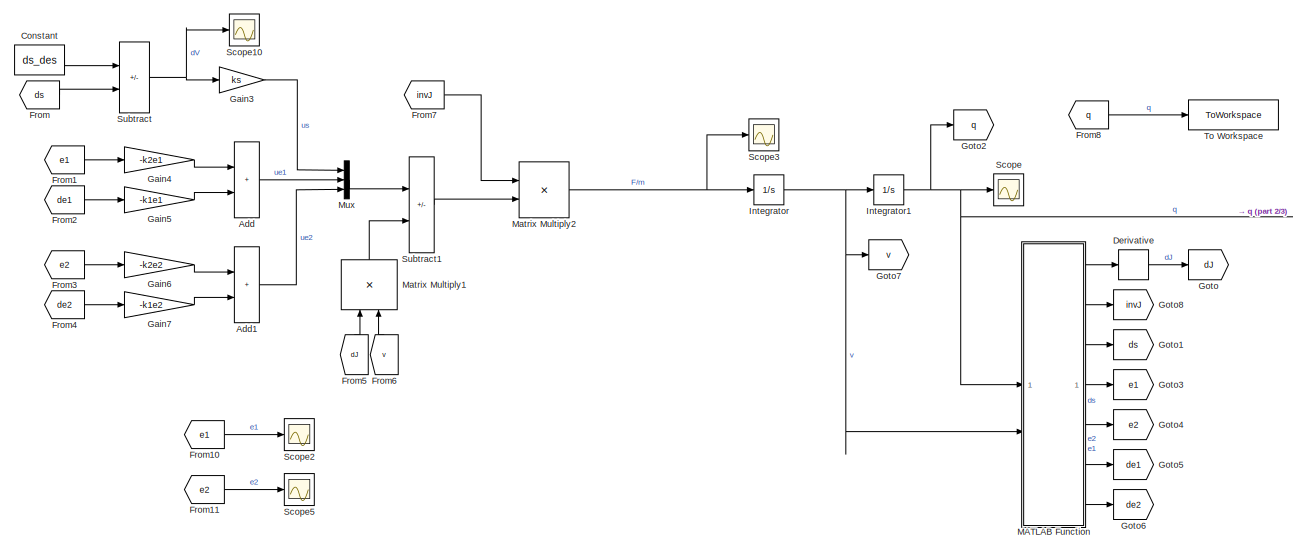
[diagram: root canvas - part 1/3, full width, top band]
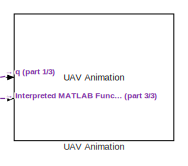
[diagram: root canvas - part 2/3, middle right region]
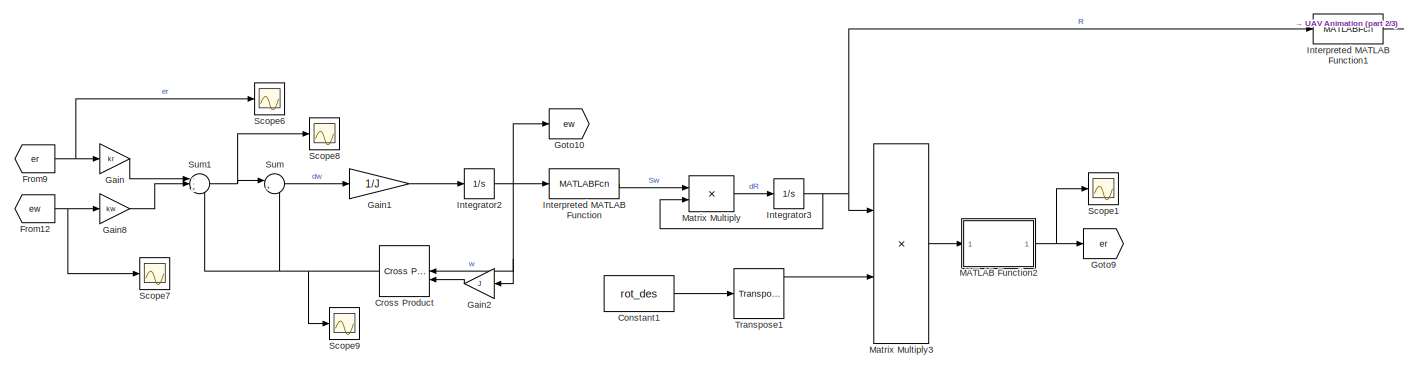
[diagram: root canvas - part 3/3, full width, bottom band]
MODEL slx_d475de944441
KIND model
CONFIG AbsTol = auto
CONFIG EnableMultiTasking = off
CONFIG FixedStep = auto
CONFIG MaxStep = auto
CONFIG MinStep = auto
CONFIG RelTol = 1e-3
CONFIG SampleTimeConstraint = Unconstrained
CONFIG SolverName = VariableStepAuto
CONFIG StartTime = 0.0
CONFIG StopTime = 50
BLOCK [Sum] Add
  IconShape = rectangular
BLOCK [Sum] Add1
  IconShape = rectangular
BLOCK [Constant] Constant
  Value = ds_des
BLOCK [Constant] Constant1
  Value = rot_des
  VectorParams1D = off
BLOCK [Reference] Cross Product  REF=matrix_library/Cross Product
  LibrarySourceBlock = simulink/Matrix\nOperations/Cross Product
  SourceBlock = matrix_library/Cross Product
  SourceType = CrossProduct
BLOCK [Derivative] Derivative
BLOCK [From] From
  GotoTag = ds
BLOCK [From] From1
  GotoTag = e1
BLOCK [From] From10
  GotoTag = e1
BLOCK [From] From11
  GotoTag = e2
BLOCK [From] From12
  GotoTag = ew
BLOCK [From] From2
  GotoTag = de1
BLOCK [From] From3
  GotoTag = e2
BLOCK [From] From4
  GotoTag = de2
BLOCK [From] From5
  GotoTag = dJ
  NameLocation = right
BLOCK [From] From6
  GotoTag = v
  NameLocation = right
BLOCK [From] From7
  GotoTag = invJ
BLOCK [From] From8
  GotoTag = q
BLOCK [From] From9
  GotoTag = er
BLOCK [Gain] Gain
  Gain = kr
BLOCK [Gain] Gain1
  Gain = 1/J
BLOCK [Gain] Gain2
  Gain = J
BLOCK [Gain] Gain3
  Gain = ks
BLOCK [Gain] Gain4
  Gain = -k2e1
BLOCK [Gain] Gain5
  Gain = -k1e1
BLOCK [Gain] Gain6
  Gain = -k2e2
BLOCK [Gain] Gain7
  Gain = -k1e2
BLOCK [Gain] Gain8
  Gain = kw
BLOCK [Goto] Goto
  GotoTag = dJ
BLOCK [Goto] Goto1
  GotoTag = ds
BLOCK [Goto] Goto10
  GotoTag = ew
BLOCK [Goto] Goto2
  GotoTag = q
BLOCK [Goto] Goto3
  GotoTag = e1
BLOCK [Goto] Goto4
  GotoTag = e2
BLOCK [Goto] Goto5
  GotoTag = de1
BLOCK [Goto] Goto6
  GotoTag = de2
BLOCK [Goto] Goto7
  GotoTag = v
BLOCK [Goto] Goto8
  GotoTag = invJ
BLOCK [Goto] Goto9
  GotoTag = er
BLOCK [Integrator] Integrator
  InitialCondition = [0;0;0]
BLOCK [Integrator] Integrator1
  InitialCondition = pos_init
BLOCK [Integrator] Integrator2
  InitialCondition = [0;0;0]
BLOCK [Integrator] Integrator3
  InitialCondition = rot_init
BLOCK [MATLABFcn] Interpreted MATLAB Function
  MATLABFcn = [0,u(3),-u(2); -u(3), 0, u(1); u(2),-u(1),0]
  Output1D = off
BLOCK [MATLABFcn] Interpreted MATLAB Function1
  MATLABFcn = rotm2quat(u)
  Output1D = off
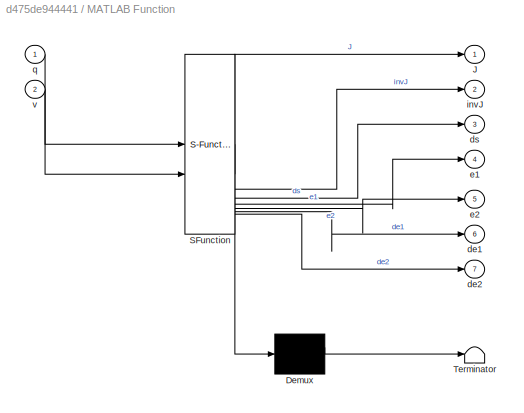
BLOCK [SubSystem] MATLAB Function
  ErrorFcn = Stateflow.Translate.translate
  LibrarySourceBlock = simulink/User-Defined\nFunctions/MATLAB Function
  PermitHierarchicalResolution = ExplicitOnly
  SFBlockType = MATLAB Function
  TreatAsAtomicUnit = on
BLOCK [Demux] MATLAB Function/ Demux 
  Outputs = 1
BLOCK [S-Function] MATLAB Function/ SFunction 
  EnableBusSupport = on
  FunctionName = sf_sfun
  PortCounts = [2 8]
  SFcnIsStateOwnerBlock = off
  SFunctionDeploymentMode = off
  Tag = Stateflow S-Function 2
BLOCK [Terminator] MATLAB Function/ Terminator 
BLOCK [Outport] MATLAB Function/J
BLOCK [Outport] MATLAB Function/de1
  Port = 6
BLOCK [Outport] MATLAB Function/de2
  Port = 7
BLOCK [Outport] MATLAB Function/ds
  Port = 3
BLOCK [Outport] MATLAB Function/e1
  Port = 4
BLOCK [Outport] MATLAB Function/e2
  Port = 5
BLOCK [Outport] MATLAB Function/invJ
  Port = 2
BLOCK [Inport] MATLAB Function/q
BLOCK [Inport] MATLAB Function/v
  Port = 2
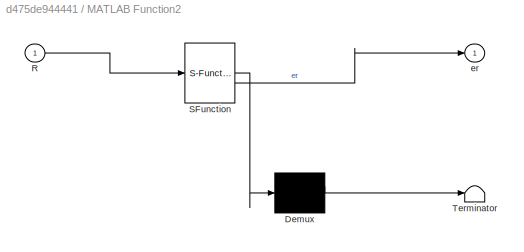
BLOCK [SubSystem] MATLAB Function2
  ErrorFcn = Stateflow.Translate.translate
  LibrarySourceBlock = simulink/User-Defined\nFunctions/MATLAB Function
  PermitHierarchicalResolution = ExplicitOnly
  SFBlockType = MATLAB Function
  TreatAsAtomicUnit = on
BLOCK [Demux] MATLAB Function2/ Demux 
  Outputs = 1
BLOCK [S-Function] MATLAB Function2/ SFunction 
  EnableBusSupport = on
  FunctionName = sf_sfun
  PortCounts = [1 2]
  SFcnIsStateOwnerBlock = off
  SFunctionDeploymentMode = off
  Tag = Stateflow S-Function 3
BLOCK [Terminator] MATLAB Function2/ Terminator 
BLOCK [Inport] MATLAB Function2/R
BLOCK [Outport] MATLAB Function2/er
BLOCK [Product] Matrix Multiply
  Multiplication = Matrix(*)
BLOCK [Product] Matrix Multiply1
  Multiplication = Matrix(*)
  NameLocation = right
BLOCK [Product] Matrix Multiply2
  Multiplication = Matrix(*)
BLOCK [Product] Matrix Multiply3
  Multiplication = Matrix(*)
BLOCK [Mux] Mux
  DisplayOption = bar
  Inputs = 3
BLOCK [Scope] Scope
  Floating = off
  NumInputPorts = 1
  ScopeSpecificationString = Simulink.scopes.TimeScopeBlockCfg('CurrentConfiguration', extmgr.ConfigurationSet(extmgr.Configuration('Core','General UI',true),extmgr.Configuration('Core','Source UI',true),extmgr.Configuration('Sources','WiredSimulink',true),extmgr.Configuration('Visuals','Time Domain',true,'SerializedDisplays',{struct('MinYLimReal','-26.24975','MaxYLimReal','36.24975','YLabelReal','','MinYLimMag','0.00000','Ma...<+1368ch>
BLOCK [Scope] Scope1
  Floating = off
  NumInputPorts = 1
  ScopeSpecificationString = Simulink.scopes.TimeScopeBlockCfg('CurrentConfiguration', extmgr.ConfigurationSet(extmgr.Configuration('Core','General UI',true),extmgr.Configuration('Core','Source UI',true),extmgr.Configuration('Sources','WiredSimulink',true,'DataLoggingVariableName','ScopeData1'),extmgr.Configuration('Visuals','Time Domain',true,'SerializedDisplays',{struct('MinYLimReal','-0.92171','MaxYLimReal','0.47612','YLab...<+1490ch>
BLOCK [Scope] Scope10
  Floating = off
  NumInputPorts = 1
  ScopeSpecificationString = Simulink.scopes.TimeScopeBlockCfg('CurrentConfiguration', extmgr.ConfigurationSet(extmgr.Configuration('Core','General UI',true),extmgr.Configuration('Core','Source UI',true),extmgr.Configuration('Sources','WiredSimulink',true,'DataLoggingVariableName','ScopeData10'),extmgr.Configuration('Visuals','Time Domain',true,'SerializedDisplays',{struct('MinYLimReal','-0.66556','MaxYLimReal','5.62951','YLa...<+1390ch>
BLOCK [Scope] Scope2
  Floating = off
  NumInputPorts = 1
  ScopeSpecificationString = Simulink.scopes.TimeScopeBlockCfg('CurrentConfiguration', extmgr.ConfigurationSet(extmgr.Configuration('Core','General UI',true),extmgr.Configuration('Core','Source UI',true),extmgr.Configuration('Sources','WiredSimulink',true,'DataLoggingVariableName','ScopeData2'),extmgr.Configuration('Visuals','Time Domain',true,'SerializedDisplays',{struct('MinYLimReal','-319.50404','MaxYLimReal','35.53632','Y...<+1401ch>
BLOCK [Scope] Scope3
  Floating = off
  NumInputPorts = 1
  ScopeSpecificationString = Simulink.scopes.TimeScopeBlockCfg('CurrentConfiguration', extmgr.ConfigurationSet(extmgr.Configuration('Core','General UI',true),extmgr.Configuration('Core','Source UI',true),extmgr.Configuration('Sources','WiredSimulink',true,'DataLoggingVariableName','ScopeData3'),extmgr.Configuration('Visuals','Time Domain',true,'SerializedDisplays',{struct('MinYLimReal','-3359.38455','MaxYLimReal','1127.31267'...<+1432ch>
BLOCK [Scope] Scope5
  Floating = off
  NumInputPorts = 1
  ScopeSpecificationString = Simulink.scopes.TimeScopeBlockCfg('CurrentConfiguration', extmgr.ConfigurationSet(extmgr.Configuration('Core','General UI',true),extmgr.Configuration('Core','Source UI',true),extmgr.Configuration('Sources','WiredSimulink',true,'DataLoggingVariableName','ScopeData5'),extmgr.Configuration('Visuals','Time Domain',true,'SerializedDisplays',{struct('MinYLimReal','-4.77281','MaxYLimReal','2.95527','YLab...<+1389ch>
BLOCK [Scope] Scope6
  Floating = off
  NumInputPorts = 1
  ScopeSpecificationString = Simulink.scopes.TimeScopeBlockCfg('CurrentConfiguration', extmgr.ConfigurationSet(extmgr.Configuration('Core','General UI',true),extmgr.Configuration('Core','Source UI',true),extmgr.Configuration('Sources','WiredSimulink',true,'DataLoggingVariableName','ScopeData6'),extmgr.Configuration('Visuals','Time Domain',true,'SerializedDisplays',{struct('MinYLimReal','-0.44602','MaxYLimReal','0.80317','YLab...<+1405ch>
BLOCK [Scope] Scope7
  Floating = off
  NumInputPorts = 1
  ScopeSpecificationString = Simulink.scopes.TimeScopeBlockCfg('CurrentConfiguration', extmgr.ConfigurationSet(extmgr.Configuration('Core','General UI',true),extmgr.Configuration('Core','Source UI',true),extmgr.Configuration('Sources','WiredSimulink',true,'DataLoggingVariableName','ScopeData7'),extmgr.Configuration('Visuals','Time Domain',true,'SerializedDisplays',{struct('MinYLimReal','-1.59809','MaxYLimReal','0.88745','YLab...<+1410ch>
BLOCK [Scope] Scope8
  Floating = off
  NumInputPorts = 1
  ScopeSpecificationString = Simulink.scopes.TimeScopeBlockCfg('CurrentConfiguration', extmgr.ConfigurationSet(extmgr.Configuration('Core','General UI',true),extmgr.Configuration('Core','Source UI',true),extmgr.Configuration('Sources','WiredSimulink',true,'DataLoggingVariableName','ScopeData8'),extmgr.Configuration('Visuals','Time Domain',true,'SerializedDisplays',{struct('MinYLimReal','-40.1585','MaxYLimReal','22.30083','YLa...<+1412ch>
BLOCK [Scope] Scope9
  Floating = off
  NumInputPorts = 1
  ScopeSpecificationString = Simulink.scopes.TimeScopeBlockCfg('CurrentConfiguration', extmgr.ConfigurationSet(extmgr.Configuration('Core','General UI',true),extmgr.Configuration('Core','Source UI',true),extmgr.Configuration('Sources','WiredSimulink',true,'DataLoggingVariableName','ScopeData9'),extmgr.Configuration('Visuals','Time Domain',true,'SerializedDisplays',{struct('MinYLimReal','-0.00000000000000028','MaxYLimReal','0....<+1533ch>
BLOCK [Sum] Subtract
  IconShape = rectangular
  Inputs = +-
BLOCK [Sum] Subtract1
  IconShape = rectangular
  Inputs = +-
BLOCK [Sum] Sum
  Inputs = |+-
BLOCK [Sum] Sum1
  Inputs = --+
BLOCK [ToWorkspace] To Workspace
  FixptAsFi = on
  MaxDataPoints = inf
  SampleTime = -1
  SaveFormat = Timeseries
  VariableName = simout
BLOCK [Reference] Transpose1  REF=matrix_library/Transpose
  LibrarySourceBlock = simulink/Matrix\nOperations/Transpose
  SourceBlock = matrix_library/Transpose
  SourceType = Transpose
BLOCK [Reference] UAV Animation  REF=uavutilslib/UAV Animation
  SourceBlock = uavutilslib/UAV Animation
  SourceType = uav.sluav.internal.system.UAVAnimation
LINE Add1:1 -> Mux:3
LINE Add:1 -> Mux:2
LINE Constant1:1 -> Transpose1:1
LINE Constant:1 -> Subtract:1
NET Cross Product:1 -> Scope9:1, Sum1:3, Sum:2
LINE Derivative:1 -> Goto:1
LINE From10:1 -> Scope2:1
LINE From11:1 -> Scope5:1
NET From12:1 -> Gain8:1, Scope7:1
LINE From1:1 -> Gain4:1
LINE From2:1 -> Gain5:1
LINE From3:1 -> Gain6:1
LINE From4:1 -> Gain7:1
LINE From5:1 -> Matrix Multiply1:1
LINE From6:1 -> Matrix Multiply1:2
LINE From7:1 -> Matrix Multiply2:1
LINE From8:1 -> To Workspace:1
NET From9:1 -> Gain:1, Scope6:1
LINE From:1 -> Subtract:2
LINE Gain1:1 -> Integrator2:1
LINE Gain2:1 -> Cross Product:2
LINE Gain3:1 -> Mux:1
LINE Gain4:1 -> Add:1
LINE Gain5:1 -> Add:2
LINE Gain6:1 -> Add1:1
LINE Gain7:1 -> Add1:2
LINE Gain8:1 -> Sum1:2
LINE Gain:1 -> Sum1:1
NET Integrator1:1 -> Goto2:1, MATLAB Function:1, Scope:1, UAV Animation:1
NET Integrator2:1 -> Cross Product:1, Gain2:1, Goto10:1, Interpreted MATLAB Function:1
NET Integrator3:1 -> Interpreted MATLAB Function1:1, Matrix Multiply3:1, Matrix Multiply:2
NET Integrator:1 -> Goto7:1, Integrator1:1, MATLAB Function:2
LINE Interpreted MATLAB Function1:1 -> UAV Animation:2
LINE Interpreted MATLAB Function:1 -> Matrix Multiply:1
NET MATLAB Function2:1 -> Goto9:1, Scope1:1
LINE MATLAB Function:1 -> Derivative:1
LINE MATLAB Function:2 -> Goto8:1
LINE MATLAB Function:3 -> Goto1:1
LINE MATLAB Function:4 -> Goto3:1
LINE MATLAB Function:5 -> Goto4:1
LINE MATLAB Function:6 -> Goto5:1
LINE MATLAB Function:7 -> Goto6:1
LINE Matrix Multiply1:1 -> Subtract1:2
NET Matrix Multiply2:1 -> Integrator:1, Scope3:1
LINE Matrix Multiply3:1 -> MATLAB Function2:1
LINE Matrix Multiply:1 -> Integrator3:1
LINE Mux:1 -> Subtract1:1
LINE Subtract1:1 -> Matrix Multiply2:2
NET Subtract:1 -> Gain3:1, Scope10:1
NET Sum1:1 -> Scope8:1, Sum:1
LINE Sum:1 -> Gain1:1
LINE Transpose1:1 -> Matrix Multiply3:2
note: NET lines group one-source signal fan-out (src -> all destinations, sorted); 1:1 wires keep LINE
CHART MATLAB Function states=1 transitions=1
  STATE_LABEL 'eML_blk_kernel()'
  STATE_LABEL 'SCRIPT:\nfunction [J, invJ, ds, e1, e2, de1, de2] = fcn(q, v)\n\nx = q(1);\ny = q(2);\nz = q(3);\n\nJ = [[y.*1.0./sqrt(x.^2.*2.0+y.^2);x.*1.0./sqrt(x.^2+y.^2);0.0], ...\n     [-x.*1.0./sqrt(x.^2.*2.0+y.^2);y.*1.0./sqrt(x.^2+y.^2);sqrt(2.0)./2.0],...\n     [x.*1.0./sqrt(x.^2.*2.0+y.^2);0.0;sqrt(2.0)./2.0]];\ninvJ = inv(J);\n\nds = J(1,:)* v;\n\ne1 = x^2 +y^2 -400;\n\ne2 = z+y-10;\n\ngrad_1 = [x.*2.0,y.*2.0,0.0];\ngra...<+57ch>'
CHART MATLAB Function2 states=1 transitions=1
  STATE_LABEL 'eML_blk_kernel()'
  STATE_LABEL "SCRIPT:\nfunction er = fcn(R)\n\nA = R - R.';\n\ne = [A(2,3); A(3,1); A(1,2)];\n\ner = e/2;\n"
CHART  states=0 transitions=0
CHART  states=0 transitions=0
